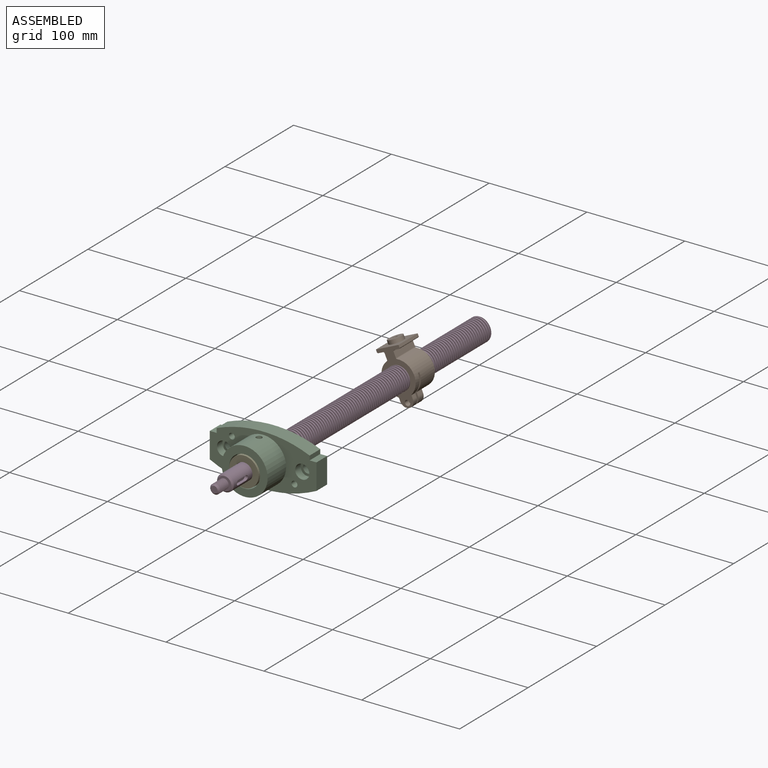
[diagram: assembled view]
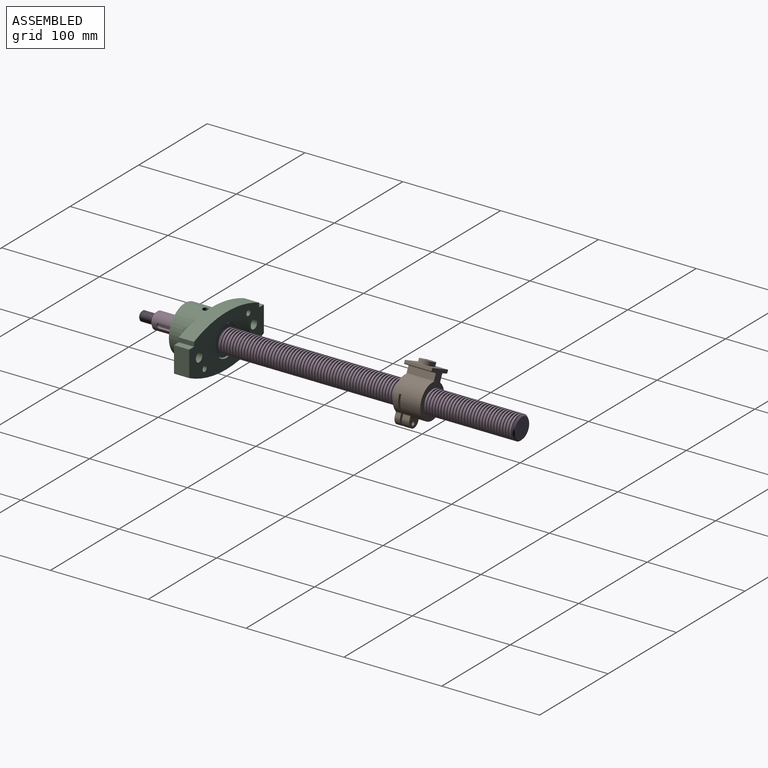
[diagram: assembled view, second angle]
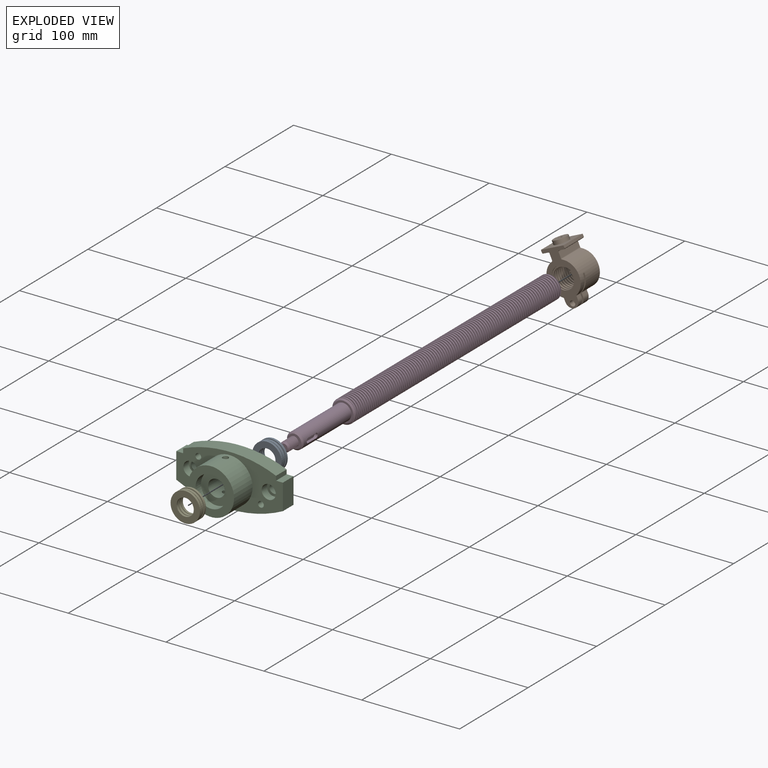
[diagram: exploded view]
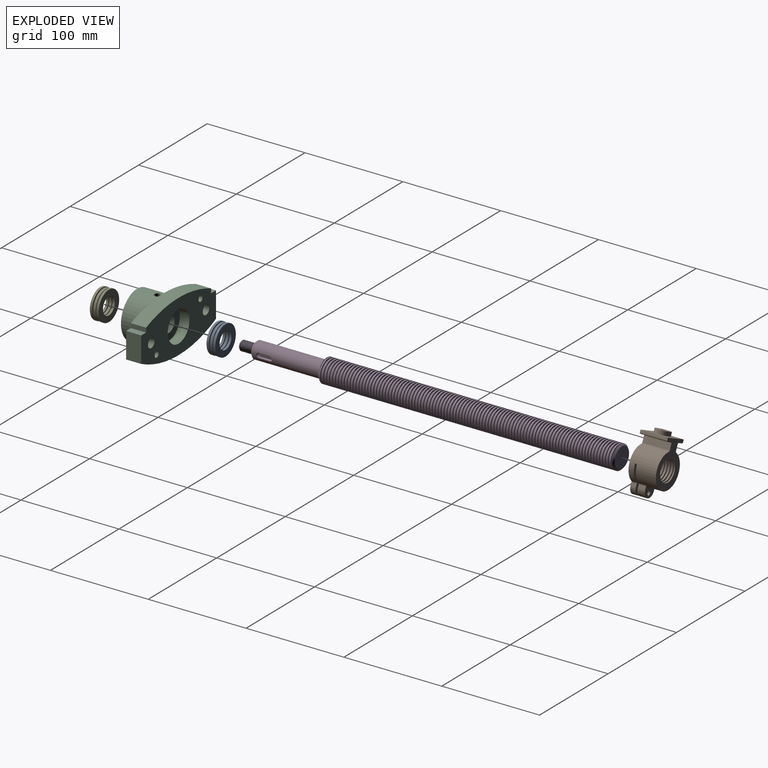
[diagram: exploded view, second angle]
ASSEMBLY  parts=5 mates=4
PART A: 38 faces, bbox 30x9x30 mm
  f0: sphere r=2.5mm, area 14.9mm2, adj f14,f31
  f1: sphere r=2.5mm, area 14.9mm2, adj f14,f31
  f2: sphere r=2.5mm, area 14.9mm2, adj f14,f31
  f3: sphere r=2.5mm, area 14.9mm2, adj f14,f31
  f4: sphere r=2.5mm, area 14.9mm2, adj f14,f31
  f5: sphere r=2.5mm, area 14.9mm2, adj f14,f31
  f6: sphere r=2.5mm, area 14.9mm2, adj f14,f31
  f7: sphere r=2.5mm, area 14.9mm2, adj f14,f31
  f8: sphere r=2.5mm, area 14.9mm2, adj f14,f31
  f9: sphere r=2.5mm, area 14.9mm2, adj f14,f31
  f10: sphere r=2.5mm, area 14.9mm2, adj f14,f31
  f11: sphere r=2.5mm, area 14.9mm2, adj f14,f31
  f12: sphere r=2.5mm, area 14.9mm2, adj f14,f31
  f13: plane 29.3x29.3mm, normal (0,-1,0), area 242.3mm2, adj f15,f16,f17,f18,f19,f20,f21,f22
  f14: plane 29.3x29.3mm, normal (0,1,0), area 242.3mm2, adj f0,f1,f2,f3,f4,f5,f6,f7
  f15: cylinder r=8.75mm len=17.5mm, axis (0,1,0), area 137.4mm2, adj f13,f14
  f16: cylinder r=14.65mm len=29.3mm, axis (0,1,0), area 230.1mm2, adj f13,f14
  f17: sphere r=2.5mm, area 14.9mm2, adj f13,f34
  f18: sphere r=2.5mm, area 14.9mm2, adj f13,f34
  f19: sphere r=2.5mm, area 14.9mm2, adj f13,f34
  f20: sphere r=2.5mm, area 14.9mm2, adj f13,f34
  f21: sphere r=2.5mm, area 14.9mm2, adj f13,f34
  f22: sphere r=2.5mm, area 14.9mm2, adj f13,f34
  f23: sphere r=2.5mm, area 14.9mm2, adj f13,f34
  f24: sphere r=2.5mm, area 14.9mm2, adj f13,f34
  f25: sphere r=2.5mm, area 14.9mm2, adj f13,f34
  f26: sphere r=2.5mm, area 14.9mm2, adj f13,f34
  f27: sphere r=2.5mm, area 14.9mm2, adj f13,f34
  f28: sphere r=2.5mm, area 14.9mm2, adj f13,f34
  f29: sphere r=2.5mm, area 14.9mm2, adj f13,f34
  f30: cylinder r=15mm len=30mm, axis (0,-1,0), area 216.8mm2, adj f31,f33
  f31: plane 30x30mm, normal (0,-1,0), area 408.7mm2, adj f0,f1,f2,f3,f4,f5,f6,f7
  f32: cylinder r=8.75mm len=17.5mm, axis (0,-1,0), area 126.4mm2, adj f31,f33
  f33: plane 30x30mm, normal (0,1,0), area 466.3mm2, adj f30,f32
  f34: plane 30x30mm, normal (0,1,0), area 408.7mm2, adj f17,f18,f19,f20,f21,f22,f23,f24
  f35: cylinder r=15mm len=30mm, axis (0,-1,0), area 216.8mm2, adj f34,f36
  f36: plane 30x30mm, normal (0,-1,0), area 466.3mm2, adj f35,f37
  f37: cylinder r=8.75mm len=17.5mm, axis (0,-1,0), area 126.4mm2, adj f34,f36
PART B: 43 faces, bbox 35x28.5x59 mm
  f0: cylinder r=12mm len=28mm, axis (0,1,0), area 1061mm2, adj f19,f20,f41,f42
  f1: plane 5.31x2mm, normal (0,0,-1), area 10.6mm2, adj f2,f3,f8,f39
  f2: plane 35x26.75mm, normal (0,-1,0), area 349.2mm2, adj f1,f4,f5,f6,f7,f8,f25,f28
  f3: plane 35x26.75mm, normal (0,1,0), area 339.3mm2, adj f1,f4,f8,f13,f14,f15,f24,f34
  f4: plane 5.31x2mm, normal (0,0,-1), area 10.6mm2, adj f2,f3,f8,f39
  f5: plane 7.59x3.07mm, normal (-1,0,0), area 23mm2, adj f2,f6,f21,f29,f30
  f6: cylinder r=7mm len=14mm, axis (0,1,0), area 164.9mm2, adj f2,f5,f7,f21
  f7: plane 7.59x3.07mm, normal (1,0,0), area 23mm2, adj f2,f6,f21,f28,f29
  f8: cylinder r=17.5mm len=35mm, axis (0,1,0), area 2426mm2, adj f1,f2,f3,f4,f19,f20,f28,f29
  f9: plane 28x25.4mm, normal (0,0,1), area 534.5mm2, adj f10,f18,f19,f20,f22
  f10: plane 28x2.5mm, normal (-1,0,0), area 70mm2, adj f9,f19,f20,f31
  f11: plane 28x5.7mm, normal (0,0,-1), area 159.6mm2, adj f19,f20,f31,f32
  f12: plane 28x6.25mm, normal (-1,0,0), area 175mm2, adj f19,f20,f32,f33
  f13: plane 5.5x3.07mm, normal (-1,0,0), area 16.9mm2, adj f3,f14,f19,f34
  f14: cylinder r=7mm len=14mm, axis (0,1,0), area 121mm2, adj f3,f13,f15,f19
  f15: plane 5.5x3.07mm, normal (1,0,0), area 16.9mm2, adj f3,f14,f19,f35
  f16: plane 28x6.25mm, normal (1,0,0), area 175mm2, adj f19,f20,f36,f37
  f17: plane 28x5.7mm, normal (0,0,-1), area 159.6mm2, adj f19,f20,f37,f38
  f18: plane 28x2.5mm, normal (1,0,0), area 70mm2, adj f9,f19,f20,f38
  f19: plane 55x35mm, normal (0,-1,0), area 818.3mm2, adj f0,f8,f9,f10,f11,f12,f13,f14
  f20: plane 45.75x35mm, normal (0,1,0), area 726.7mm2, adj f0,f8,f9,f10,f11,f12,f16,f17
  f21: plane 14x9.63mm, normal (0,1,0), area 86.9mm2, adj f5,f6,f7,f25,f29
  f22: cylinder r=7.5mm len=15mm, axis (0,0,-1), area 188.5mm2, adj f9,f23
  f23: plane 15x15mm, normal (0,0,1), area 162.9mm2, adj f22,f26
  f24: cylinder r=2.75mm len=5.5mm, axis (0,-1,0), area 95mm2, adj f3,f19
  f25: cylinder r=2.1mm len=7.5mm, axis (0,-1,0), area 99mm2, adj f2,f21
  f26: cylinder r=2.1mm len=17mm, axis (0,0,1), area 224.3mm2, adj f23,f27
  f27: cone r=0mm half-angle=59deg, axis (0,0,1), area 16.2mm2, adj f26
  f28: cylinder r=1mm len=8.5mm, axis (0,1,0), area 9mm2, adj f2,f7,f8,f29
  f29: torus R=18.5mm, axis (0,1,0), area 23.1mm2, adj f5,f7,f8,f21,f28,f30
  f30: cylinder r=1mm len=8.5mm, axis (0,1,0), area 9mm2, adj f2,f5,f8,f29
  f31: cylinder r=1mm len=28mm, axis (0,1,0), area 44mm2, adj f10,f11,f19,f20
  f32: cylinder r=1mm len=28mm, axis (0,-1,0), area 44mm2, adj f11,f12,f19,f20
  f33: cylinder r=1mm len=28mm, axis (0,1,0), area 34.7mm2, adj f8,f12,f19,f20
  f34: cylinder r=1mm len=5.5mm, axis (0,1,0), area 6.2mm2, adj f3,f8,f13,f19
  f35: cylinder r=1mm len=5.5mm, axis (0,1,0), area 6.2mm2, adj f3,f8,f15,f19
  f36: cylinder r=1mm len=28mm, axis (0,1,0), area 34.7mm2, adj f8,f16,f19,f20
  f37: cylinder r=1mm len=28mm, axis (0,1,0), area 44mm2, adj f16,f17,f19,f20
  f38: cylinder r=1mm len=28mm, axis (0,1,0), area 44mm2, adj f17,f18,f19,f20
  f39: cylinder r=12.19mm len=24.38mm, axis (0,-1,0), area 76.6mm2, adj f1,f2,f3,f4
  f40: cylinder r=10.5mm len=28mm, axis (0,-1,0), area 928.4mm2, adj f19,f20,f41,f42
  f41: bspline ~28.5x27.71mm, area 992.6mm2, adj f0,f19,f20,f40
  f42: bspline ~28.5x27.71mm, area 992.6mm2, adj f0,f19,f20,f40
PART C: 27 faces, bbox 109x42.5x53 mm
  f0: cylinder r=8.6mm len=24.5mm, axis (0,1,0), area 1266.5mm2, adj f20,f22,f23,f24
  f1: cylinder r=23.5mm len=47mm, axis (0,1,0), area 3929.8mm2, adj f12,f18,f23,f24
  f2: cylinder r=4.75mm len=9.5mm, axis (0,1,0), area 223.8mm2, adj f13,f17
  f3: cylinder r=4.75mm len=9.5mm, axis (0,1,0), area 223.8mm2, adj f13,f15
  f4: cylinder r=123.5mm len=109mm, axis (0,1,0), area 1749.8mm2, adj f5,f11,f12,f13
  f5: plane 26.32x15.5mm, normal (1,0,0), area 408mm2, adj f4,f6,f12,f13
  f6: plane 15.5x7mm, normal (0,0,1), area 108.5mm2, adj f5,f7,f12,f13
  f7: plane 15.5x4.5mm, normal (1,0,0), area 69.7mm2, adj f6,f8,f12,f13
  f8: cylinder r=123.5mm len=95mm, axis (0,1,0), area 1511.5mm2, adj f7,f9,f12,f13
  f9: plane 15.5x4.5mm, normal (-1,0,0), area 69.7mm2, adj f8,f10,f12,f13
  f10: plane 15.5x7mm, normal (0,0,1), area 108.5mm2, adj f9,f11,f12,f13
  f11: plane 26.32x15.5mm, normal (-1,0,0), area 408mm2, adj f4,f10,f12,f13
  f12: plane 109x53mm, normal (0,-1,0), area 2712.5mm2, adj f1,f4,f5,f6,f7,f8,f9,f10
  f13: plane 109x53mm, normal (0,1,0), area 3844.2mm2, adj f2,f3,f4,f5,f6,f7,f8,f9
  f14: cylinder r=7.25mm len=14.5mm, axis (0,-1,0), area 364.4mm2, adj f12,f15
  f15: plane 14.5x14.5mm, normal (0,-1,0), area 94.2mm2, adj f3,f14
  f16: cylinder r=7.25mm len=14.5mm, axis (0,-1,0), area 364.4mm2, adj f12,f17
  f17: plane 14.5x14.5mm, normal (0,-1,0), area 94.2mm2, adj f2,f16
  f18: plane 47x47mm, normal (0,-1,0), area 943.2mm2, adj f1,f19
  f19: cylinder r=15.88mm len=31.75mm, axis (0,-1,0), area 798mm2, adj f18,f20
  f20: plane 31.75x31.75mm, normal (0,-1,0), area 559.4mm2, adj f0,f19
  f21: cylinder r=15.88mm len=31.75mm, axis (0,1,0), area 997.5mm2, adj f13,f22
  f22: plane 31.75x31.75mm, normal (0,1,0), area 559.4mm2, adj f0,f21
  f23: cylinder r=3mm len=15.44mm, axis (0,0,-1), area 284.1mm2, adj f0,f1
  f24: cylinder r=3mm len=15.44mm, axis (0,0,-1), area 284.1mm2, adj f0,f1
  f25: cylinder r=3mm len=15.5mm, axis (0,-1,0), area 292.2mm2, adj f12,f13
  f26: cylinder r=3mm len=15.5mm, axis (0,-1,0), area 292.2mm2, adj f12,f13
PART D: 25 faces, bbox 28.1x389.4x24.4 mm
  f0: cylinder r=12mm len=300mm, axis (0,-1,0), area 11278.7mm2, adj f13,f14,f16,f18
  f1: cylinder r=8.5mm len=69.5mm, axis (0,-1,0), area 3635.1mm2, adj f3,f7,f8,f9,f10,f15
  f2: plane 21x21mm, normal (0,1,0), area 346.4mm2, adj f13
  f3: plane 21x21mm, normal (0,-1,0), area 119.4mm2, adj f1,f14
  f4: plane 14.42x14.42mm, normal (0,-1,0), area 89.2mm2, adj f5,f15,f21,f22,f23
  f5: cylinder r=5mm len=13.5mm, axis (0,-1,0), area 87.6mm2, adj f4,f12,f22,f23
  f6: plane 7x7mm, normal (0,-1,0), area 38.5mm2, adj f12
  f7: cylinder r=2.5mm len=5mm, axis (0,0,1), area 23mm2, adj f1,f8,f10,f11
  f8: plane 11.2x2.92mm, normal (1,0,0), area 32.7mm2, adj f1,f7,f9,f11
  f9: cylinder r=2.5mm len=5mm, axis (0,0,1), area 23mm2, adj f1,f8,f10,f11
  f10: plane 11.2x2.92mm, normal (-1,0,0), area 32.7mm2, adj f1,f7,f9,f11
  f11: plane 16.2x5mm, normal (0,0,1), area 75.6mm2, adj f7,f8,f9,f10
  f12: cone r=3.5mm half-angle=45deg, axis (0,1,0), area 56.6mm2, adj f5,f6,f24
  f13: cone r=12mm half-angle=45deg, axis (0,-1,0), area 149.9mm2, adj f0,f2,f19
  f14: cone r=10.5mm half-angle=45deg, axis (0,1,0), area 149.9mm2, adj f0,f3,f20
  f15: cone r=7mm half-angle=45deg, axis (0,1,0), area 103.3mm2, adj f1,f4
  f16: bspline ~300.5x27.71mm, area 10588.4mm2, adj f0,f17,f19,f20
  f17: cylinder r=10.5mm len=300mm, axis (0,1,0), area 9868.8mm2, adj f16,f18,f19,f20
  f18: bspline ~300.5x27.71mm, area 10588.4mm2, adj f0,f17,f19,f20
  f19: plane 24x12mm, normal (0,-1,0), area 53mm2, adj f13,f16,f17,f18
  f20: plane 24x12mm, normal (0,1,0), area 53mm2, adj f14,f16,f17,f18
  f21: bspline ~14.63x9.67mm, area 98mm2, adj f4,f22,f23,f24
  f22: bspline ~14.72x11.55mm, area 243.6mm2, adj f4,f5,f21,f24
  f23: bspline ~14.47x11.55mm, area 244.4mm2, adj f4,f5,f21,f24
  f24: plane 10.42x10.42mm, normal (0,1,0), area 13.8mm2, adj f12,f21,f22,f23
PART E: same geometry as A
PLACE A rot(axis=(0,1,0),1.4deg) t=(0,-5.5,0)mm
PLACE B rot(axis=(0,-1,0),24.4deg) t=(0,196.21,0)mm
PLACE C at identity fixed
PLACE D rot(axis=(0,1,0),91.4deg) t=(0,150.5,0)mm
PLACE E t=(0,-39,0)mm
MATE revolute A.f15 <-> C.f0  axis (0,-1,0) through (0,-10,0)mm
MATE fastened D.f0 <-> A.f15  axis (0,-1,0) through (0,-1,0)mm
MATE fastened C.f0 <-> E.f15  axis (0,-1,0) through (0,-34.5,0)mm
MATE cylindrical D.f0 <-> B.f0  axis (0,-1,0) through (0,150.5,0)mm
